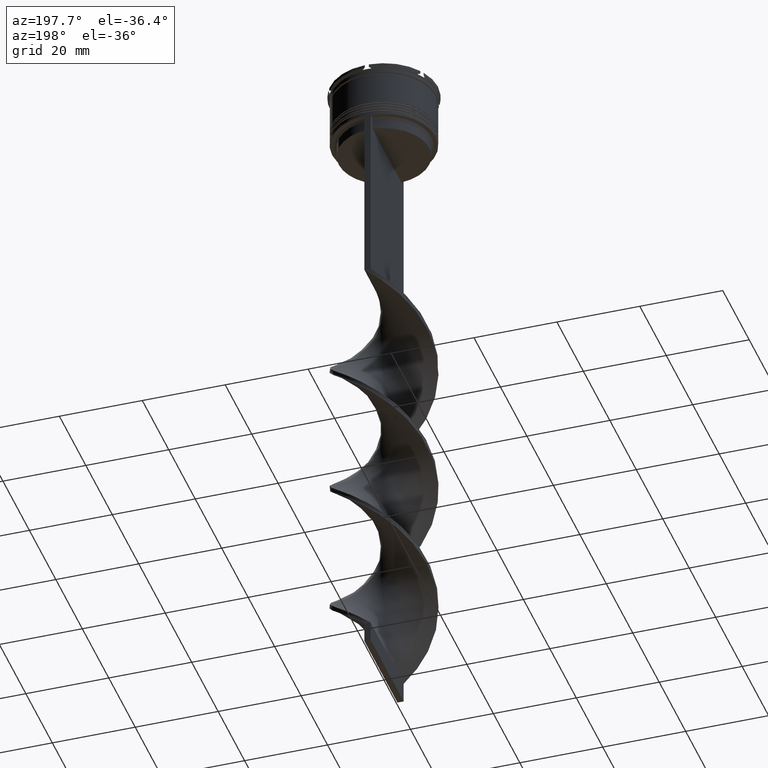
[diagram: clean part render]
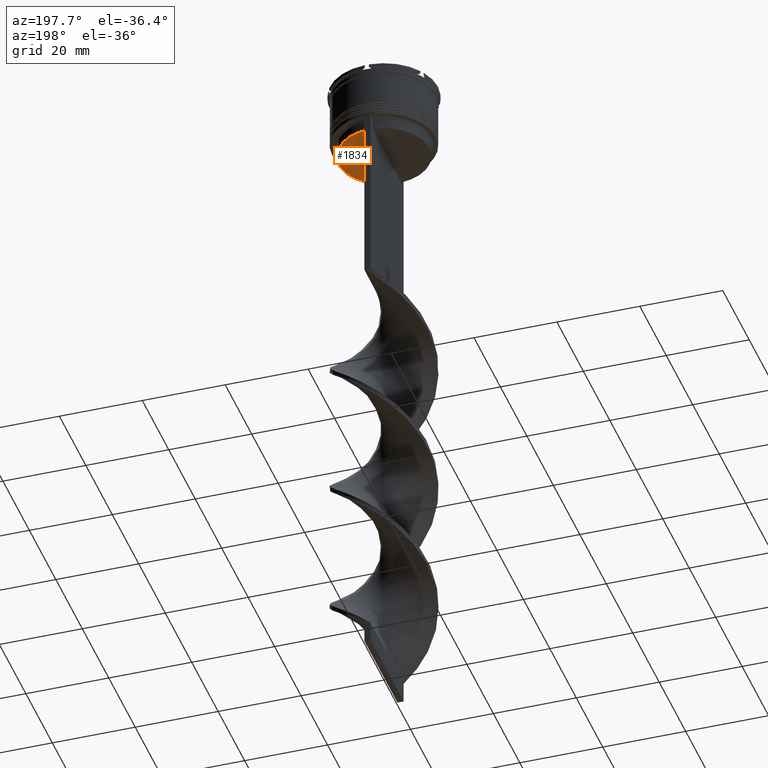
[diagram: same view with one face highlighted and labeled with its STEP entity id]
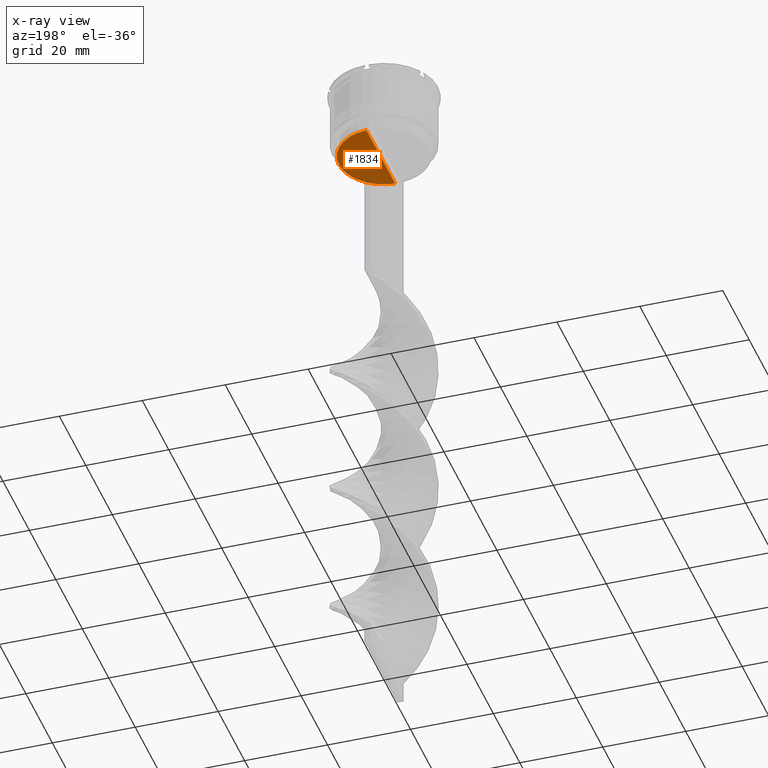
[diagram: x-ray of the same camera — body ghosted, the highlighted face saturated]
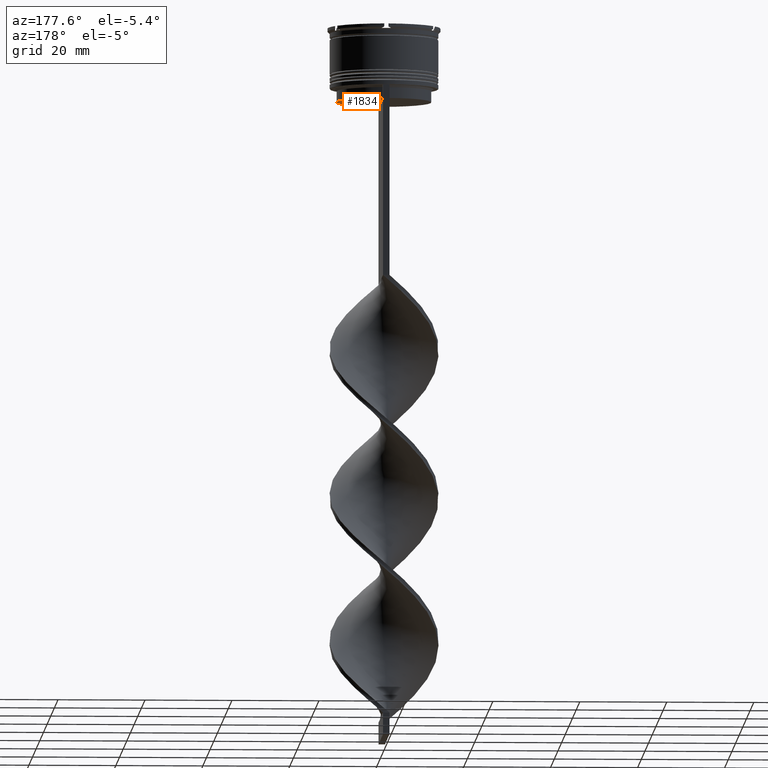
[diagram: same view with one face highlighted and labeled with its STEP entity id]
A machine part, auxiliary view. The second image highlights one B-rep face of the part: STEP entity #1834.
The next image is the same camera in x-ray: the body ghosted, the highlighted face saturated — about 16% of this face is hidden behind the body in this view.
A second angle (auxiliary view) of the same face is appended — the face is thin or edge-on in the first view.
In plain terms, the highlighted planar face has unit normal (0, -0, 1).
Its self-contained STEP definition (entity closure, byte-faithful):
#43 = CARTESIAN_POINT ( 'NONE',  ( 0.7500000000000002220, 10.90000000000000213, -17.00000000000000000 ) ) ;
#154 = CIRCLE ( 'NONE', #1210, 10.90000000000000213 ) ;
#236 = EDGE_CURVE ( 'NONE', #1578, #528, #609, .T. ) ;
#303 = CARTESIAN_POINT ( 'NONE',  ( 0.000000000000000000, 0.000000000000000000, -17.00000000000000000 ) ) ;
#389 = VERTEX_POINT ( 'NONE', #1068 ) ;
#528 = VERTEX_POINT ( 'NONE', #2380 ) ;
#534 = DIRECTION ( 'NONE',  ( 0.000000000000000000, -0.000000000000000000, 1.000000000000000000 ) ) ;
#609 = CIRCLE ( 'NONE', #2869, 10.90000000000000213 ) ;
#888 = AXIS2_PLACEMENT_3D ( 'NONE', #3356, #534, #1793 ) ;
#907 = DIRECTION ( 'NONE',  ( 1.000000000000000000, 0.000000000000000000, 0.000000000000000000 ) ) ;
#1068 = CARTESIAN_POINT ( 'NONE',  ( 0.7500000000000002220, 10.87416663473574019, -17.00000000000000000 ) ) ;
#1190 = DIRECTION ( 'NONE',  ( -0.000000000000000000, -0.000000000000000000, 1.000000000000000000 ) ) ;
#1193 = PLANE ( 'NONE',  #888 ) ;
#1207 = ORIENTED_EDGE ( 'NONE', *, *, #2268, .F. ) ;
#1210 = AXIS2_PLACEMENT_3D ( 'NONE', #4069, #1190, #907 ) ;
#1304 = DIRECTION ( 'NONE',  ( 0.000000000000000000, -1.000000000000000000, 0.000000000000000000 ) ) ;
#1446 = EDGE_CURVE ( 'NONE', #528, #389, #154, .T. ) ;
#1501 = CARTESIAN_POINT ( 'NONE',  ( 0.7500000000000002220, -10.87416663473574019, -17.00000000000000000 ) ) ;
#1578 = VERTEX_POINT ( 'NONE', #1501 ) ;
#1654 = DIRECTION ( 'NONE',  ( -0.000000000000000000, -0.000000000000000000, 1.000000000000000000 ) ) ;
#1793 = DIRECTION ( 'NONE',  ( 1.000000000000000000, 0.000000000000000000, 0.000000000000000000 ) ) ;
#1834 = ADVANCED_FACE ( 'NONE', ( #2717 ), #1193, .F. ) ;
#2268 = EDGE_CURVE ( 'NONE', #389, #1578, #3843, .T. ) ;
#2380 = CARTESIAN_POINT ( 'NONE',  ( 10.90000000000000213, 0.000000000000000000, -17.00000000000000000 ) ) ;
#2684 = VECTOR ( 'NONE', #1304, 1000.000000000000000 ) ;
#2717 = FACE_OUTER_BOUND ( 'NONE', #2935, .T. ) ;
#2869 = AXIS2_PLACEMENT_3D ( 'NONE', #303, #1654, #3586 ) ;
#2935 = EDGE_LOOP ( 'NONE', ( #1207, #3815, #4022 ) ) ;
#3356 = CARTESIAN_POINT ( 'NONE',  ( 0.000000000000000000, 10.90000000000000213, -17.00000000000000000 ) ) ;
#3586 = DIRECTION ( 'NONE',  ( 1.000000000000000000, 0.000000000000000000, 0.000000000000000000 ) ) ;
#3815 = ORIENTED_EDGE ( 'NONE', *, *, #1446, .F. ) ;
#3843 = LINE ( 'NONE', #43, #2684 ) ;
#4022 = ORIENTED_EDGE ( 'NONE', *, *, #236, .F. ) ;
#4069 = CARTESIAN_POINT ( 'NONE',  ( 0.000000000000000000, 0.000000000000000000, -17.00000000000000000 ) ) ;